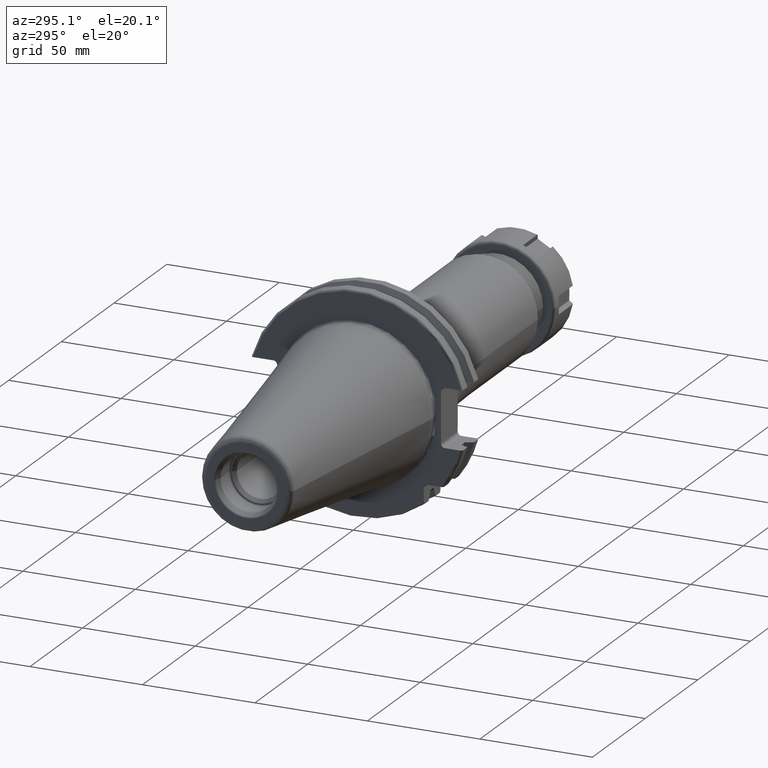
[diagram: clean part render]
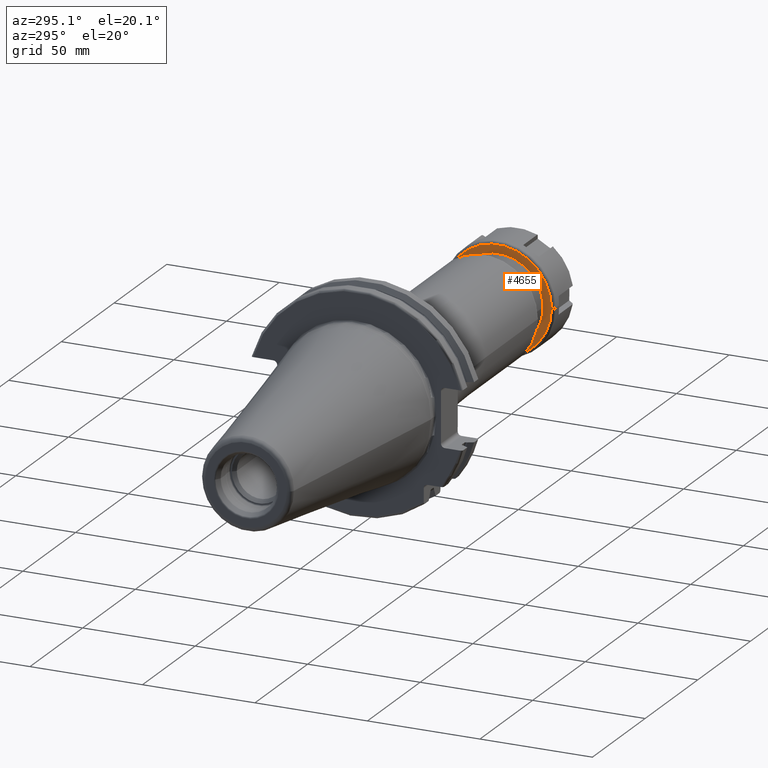
[diagram: same view with one face highlighted and labeled with its STEP entity id]
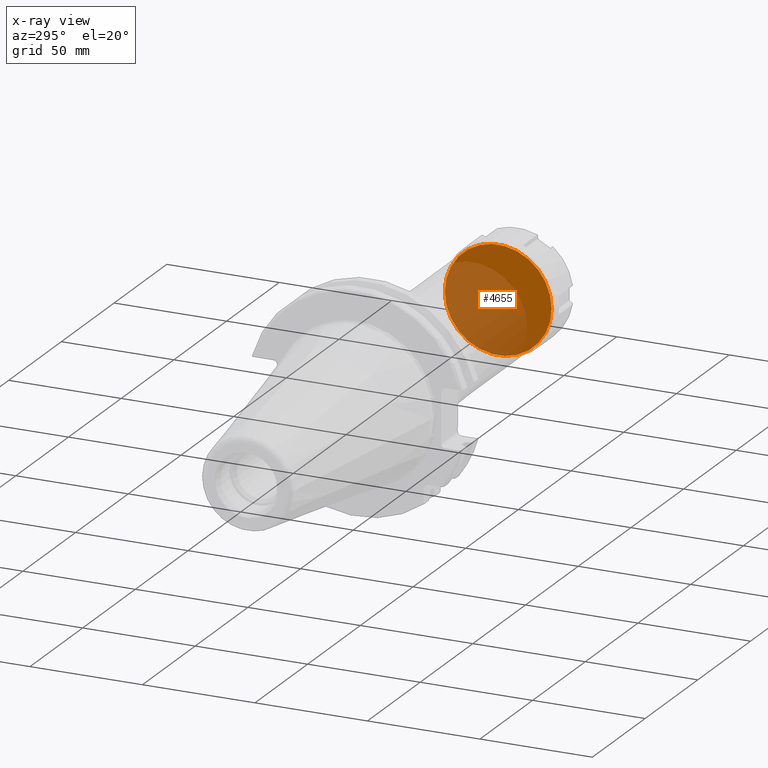
[diagram: x-ray of the same camera — body ghosted, the highlighted face saturated]
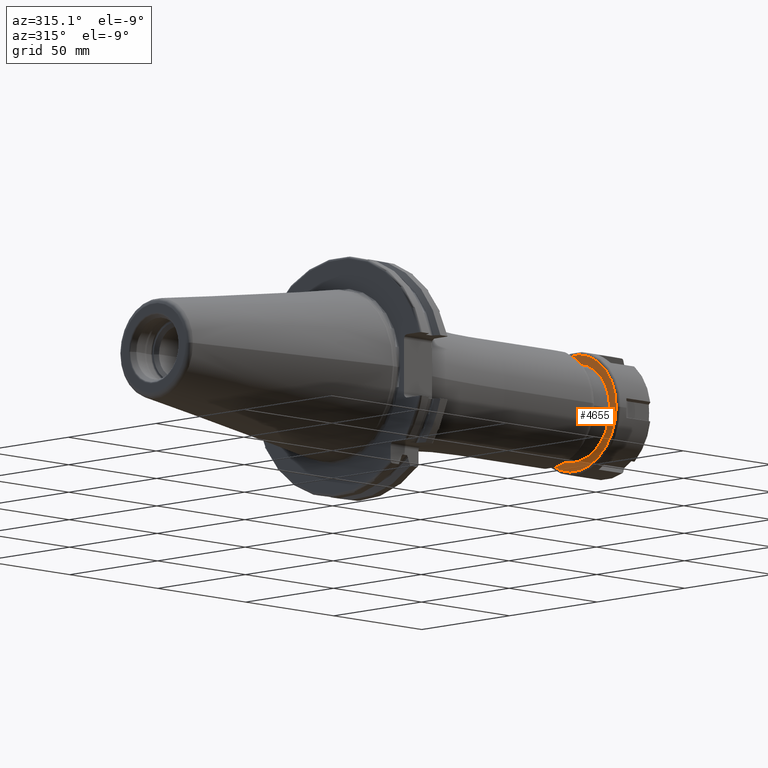
[diagram: same view with one face highlighted and labeled with its STEP entity id]
A machine part, auxiliary view. The second image highlights one B-rep face of the part: STEP entity #4655.
The next image is the same camera in x-ray: the body ghosted, the highlighted face saturated — about 62% of this face is hidden behind the body in this view.
A second angle (auxiliary view) of the same face is appended — the face is thin or edge-on in the first view.
In plain terms, the highlighted planar face has unit normal (1, 0, 0).
Its self-contained STEP definition (entity closure, byte-faithful):
#3948=CARTESIAN_POINT('',(0.E0,0.E0,0.E0));
#3949=DIRECTION('',(-1.E0,0.E0,0.E0));
#3950=DIRECTION('',(0.E0,1.E0,0.E0));
#3951=AXIS2_PLACEMENT_3D('',#3948,#3949,#3950);
#3953=CARTESIAN_POINT('',(0.E0,0.E0,0.E0));
#3954=DIRECTION('',(-1.E0,0.E0,0.E0));
#3955=DIRECTION('',(0.E0,-1.E0,0.E0));
#3956=AXIS2_PLACEMENT_3D('',#3953,#3954,#3955);
#4097=CARTESIAN_POINT('',(0.E0,2.375E1,0.E0));
#4098=CARTESIAN_POINT('',(0.E0,-2.375E1,0.E0));
#4099=VERTEX_POINT('',#4097);
#4100=VERTEX_POINT('',#4098);
#4645=CARTESIAN_POINT('',(0.E0,0.E0,0.E0));
#4646=DIRECTION('',(1.E0,0.E0,0.E0));
#4647=DIRECTION('',(0.E0,-1.E0,0.E0));
#4648=AXIS2_PLACEMENT_3D('',#4645,#4646,#4647);
#4649=PLANE('',#4648);
#4651=ORIENTED_EDGE('',*,*,#4650,.F.);
#4652=ORIENTED_EDGE('',*,*,#4635,.F.);
#4653=EDGE_LOOP('',(#4651,#4652));
#4654=FACE_OUTER_BOUND('',#4653,.F.);
#4655=ADVANCED_FACE('',(#4654),#4649,.F.);
#3952=CIRCLE('',#3951,2.375E1);
#3957=CIRCLE('',#3956,2.375E1);
#4635=EDGE_CURVE('',#4100,#4099,#3957,.T.);
#4650=EDGE_CURVE('',#4099,#4100,#3952,.T.);